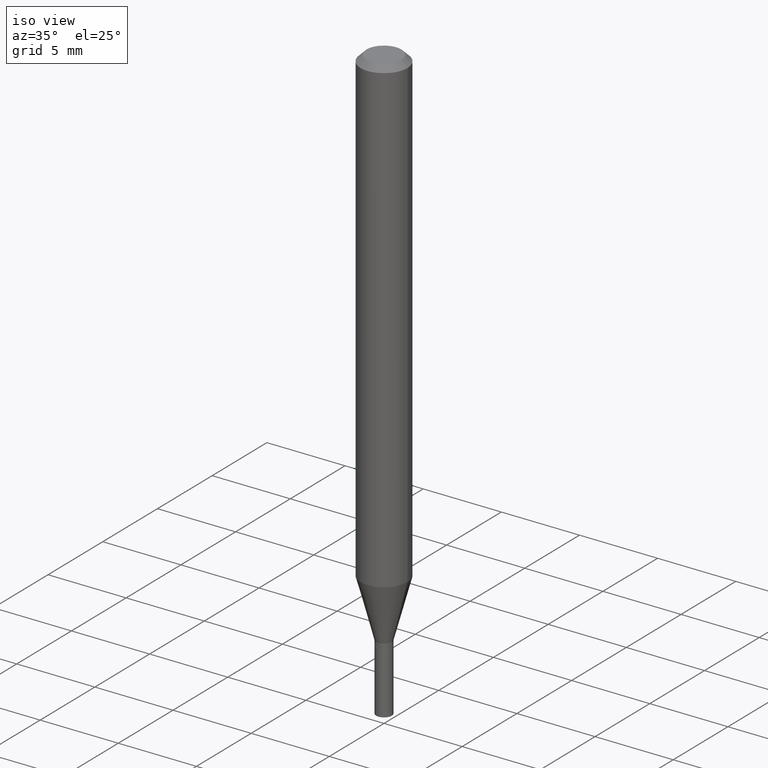
[diagram: clean part render]
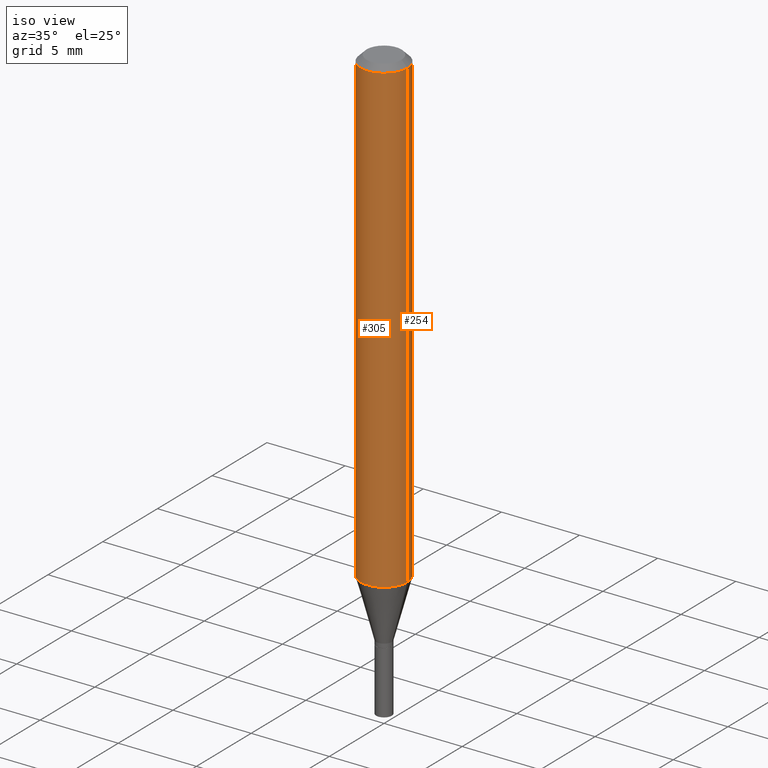
[diagram: same view with one multi-face feature highlighted, each face labeled with its STEP entity id]
A machine part, iso view. The highlighted faces form ONE feature: a constant-radius fillet chain: 2 tangent blend faces with common blend radius 1.4999 mm. The faces share edges in the B-rep.
Their STEP definitions:
[1] entity #305 (Cylinder):
#9 = DIRECTION ( 'NONE',  ( 1.000000000000000000, -6.982962677686270655E-15, 0.000000000000000000 ) ) ;
#15 = ORIENTED_EDGE ( 'NONE', *, *, #342, .F. ) ;
#26 = CARTESIAN_POINT ( 'NONE',  ( 0.05905000000000001914, -4.550251410184451334E-15, -1.185143800722164409 ) ) ;
#67 = DIRECTION ( 'NONE',  ( -2.445468806185136597E-29, 3.491481338843145583E-15, 1.000000000000000000 ) ) ;
#76 = CARTESIAN_POINT ( 'NONE',  ( 2.898232195509746702E-29, -4.137907464067076414E-15, -1.185143800722164409 ) ) ;
#78 = VERTEX_POINT ( 'NONE', #26 ) ;
#95 = AXIS2_PLACEMENT_3D ( 'NONE', #76, #181, #9 ) ;
#97 = DIRECTION ( 'NONE',  ( 1.000000000000000000, -6.982962677686266711E-15, 4.876176775795935793E-29 ) ) ;
#110 = CARTESIAN_POINT ( 'NONE',  ( 3.668203209277705088E-31, -5.237222008264718399E-17, -0.01499999999999999944 ) ) ;
#129 = CARTESIAN_POINT ( 'NONE',  ( 0.000000000000000000, 0.000000000000000000, 0.000000000000000000 ) ) ;
#136 = DIRECTION ( 'NONE',  ( -2.445468806185136597E-29, 3.491481338843145583E-15, 1.000000000000000000 ) ) ;
#155 = CARTESIAN_POINT ( 'NONE',  ( -0.05905000000000001914, 4.195754854663392958E-16, -2.904631170795522943E-30 ) ) ;
#168 = CYLINDRICAL_SURFACE ( 'NONE', #383, 0.05905000000000001914 ) ;
#171 = AXIS2_PLACEMENT_3D ( 'NONE', #110, #67, #319 ) ;
#181 = DIRECTION ( 'NONE',  ( -2.445468806185136597E-29, 3.491481338843145583E-15, 1.000000000000000000 ) ) ;
#186 = FACE_OUTER_BOUND ( 'NONE', #363, .T. ) ;
#195 = VERTEX_POINT ( 'NONE', #378 ) ;
#208 = ORIENTED_EDGE ( 'NONE', *, *, #209, .F. ) ;
#209 = EDGE_CURVE ( 'NONE', #369, #195, #410, .T. ) ;
#214 = EDGE_CURVE ( 'NONE', #369, #78, #341, .T. ) ;
#222 = CARTESIAN_POINT ( 'NONE',  ( 0.05905000000000001914, -4.123439461173741806E-16, 2.879382386107500921E-30 ) ) ;
#230 = EDGE_CURVE ( 'NONE', #78, #326, #333, .T. ) ;
#268 = ORIENTED_EDGE ( 'NONE', *, *, #214, .T. ) ;
#276 = CARTESIAN_POINT ( 'NONE',  ( -0.05905000000000001914, -3.718331978600737710E-15, -1.185143800722164409 ) ) ;
#290 = DIRECTION ( 'NONE',  ( -2.445468806185136877E-29, 3.491481338843145188E-15, 1.000000000000000000 ) ) ;
#305 = ADVANCED_FACE ( 'NONE', ( #186 ), #168, .T. ) ;
#319 = DIRECTION ( 'NONE',  ( 1.000000000000000000, -6.982962677686266711E-15, 0.000000000000000000 ) ) ;
#326 = VERTEX_POINT ( 'NONE', #377 ) ;
#329 = CIRCLE ( 'NONE', #171, 0.05905000000000001914 ) ;
#333 = LINE ( 'NONE', #222, #399 ) ;
#339 = DIRECTION ( 'NONE',  ( -2.445468806185136877E-29, 3.491481338843145188E-15, 1.000000000000000000 ) ) ;
#341 = CIRCLE ( 'NONE', #95, 0.05905000000000001914 ) ;
#342 = EDGE_CURVE ( 'NONE', #195, #326, #329, .T. ) ;
#363 = EDGE_LOOP ( 'NONE', ( #208, #268, #401, #15 ) ) ;
#369 = VERTEX_POINT ( 'NONE', #276 ) ;
#377 = CARTESIAN_POINT ( 'NONE',  ( 0.05905000000000001914, -4.647161662000214077E-16, -0.01499999999999999944 ) ) ;
#378 = CARTESIAN_POINT ( 'NONE',  ( -0.05905000000000001914, -1.675564356608522648E-15, -0.01499999999999999944 ) ) ;
#383 = AXIS2_PLACEMENT_3D ( 'NONE', #129, #136, #97 ) ;
#399 = VECTOR ( 'NONE', #339, 39.37007874015748143 ) ;
#401 = ORIENTED_EDGE ( 'NONE', *, *, #230, .T. ) ;
#405 = VECTOR ( 'NONE', #290, 39.37007874015748143 ) ;
#410 = LINE ( 'NONE', #155, #405 ) ;
[2] entity #254 (Cylinder):
#14 = ORIENTED_EDGE ( 'NONE', *, *, #230, .F. ) ;
#19 = CIRCLE ( 'NONE', #233, 0.05905000000000001914 ) ;
#26 = CARTESIAN_POINT ( 'NONE',  ( 0.05905000000000001914, -4.550251410184451334E-15, -1.185143800722164409 ) ) ;
#37 = CARTESIAN_POINT ( 'NONE',  ( 0.000000000000000000, 0.000000000000000000, 0.000000000000000000 ) ) ;
#39 = DIRECTION ( 'NONE',  ( -2.445468806185136597E-29, 3.491481338843145583E-15, 1.000000000000000000 ) ) ;
#51 = CIRCLE ( 'NONE', #115, 0.05905000000000001914 ) ;
#78 = VERTEX_POINT ( 'NONE', #26 ) ;
#112 = EDGE_CURVE ( 'NONE', #78, #369, #19, .T. ) ;
#115 = AXIS2_PLACEMENT_3D ( 'NONE', #357, #314, #253 ) ;
#155 = CARTESIAN_POINT ( 'NONE',  ( -0.05905000000000001914, 4.195754854663392958E-16, -2.904631170795522943E-30 ) ) ;
#195 = VERTEX_POINT ( 'NONE', #378 ) ;
#209 = EDGE_CURVE ( 'NONE', #369, #195, #410, .T. ) ;
#222 = CARTESIAN_POINT ( 'NONE',  ( 0.05905000000000001914, -4.123439461173741806E-16, 2.879382386107500921E-30 ) ) ;
#230 = EDGE_CURVE ( 'NONE', #78, #326, #333, .T. ) ;
#233 = AXIS2_PLACEMENT_3D ( 'NONE', #324, #284, #241 ) ;
#235 = EDGE_LOOP ( 'NONE', ( #350, #434, #420, #14 ) ) ;
#241 = DIRECTION ( 'NONE',  ( 1.000000000000000000, -6.982962677686270655E-15, 0.000000000000000000 ) ) ;
#253 = DIRECTION ( 'NONE',  ( 1.000000000000000000, -6.982962677686266711E-15, 0.000000000000000000 ) ) ;
#254 = ADVANCED_FACE ( 'NONE', ( #293 ), #291, .T. ) ;
#260 = AXIS2_PLACEMENT_3D ( 'NONE', #37, #39, #421 ) ;
#276 = CARTESIAN_POINT ( 'NONE',  ( -0.05905000000000001914, -3.718331978600737710E-15, -1.185143800722164409 ) ) ;
#284 = DIRECTION ( 'NONE',  ( -2.445468806185136597E-29, 3.491481338843145583E-15, 1.000000000000000000 ) ) ;
#290 = DIRECTION ( 'NONE',  ( -2.445468806185136877E-29, 3.491481338843145188E-15, 1.000000000000000000 ) ) ;
#291 = CYLINDRICAL_SURFACE ( 'NONE', #260, 0.05905000000000001914 ) ;
#293 = FACE_OUTER_BOUND ( 'NONE', #235, .T. ) ;
#303 = EDGE_CURVE ( 'NONE', #326, #195, #51, .T. ) ;
#314 = DIRECTION ( 'NONE',  ( -2.445468806185136597E-29, 3.491481338843145583E-15, 1.000000000000000000 ) ) ;
#324 = CARTESIAN_POINT ( 'NONE',  ( 2.898232195509746702E-29, -4.137907464067076414E-15, -1.185143800722164409 ) ) ;
#326 = VERTEX_POINT ( 'NONE', #377 ) ;
#333 = LINE ( 'NONE', #222, #399 ) ;
#339 = DIRECTION ( 'NONE',  ( -2.445468806185136877E-29, 3.491481338843145188E-15, 1.000000000000000000 ) ) ;
#350 = ORIENTED_EDGE ( 'NONE', *, *, #112, .T. ) ;
#357 = CARTESIAN_POINT ( 'NONE',  ( 3.668203209277705088E-31, -5.237222008264718399E-17, -0.01499999999999999944 ) ) ;
#369 = VERTEX_POINT ( 'NONE', #276 ) ;
#377 = CARTESIAN_POINT ( 'NONE',  ( 0.05905000000000001914, -4.647161662000214077E-16, -0.01499999999999999944 ) ) ;
#378 = CARTESIAN_POINT ( 'NONE',  ( -0.05905000000000001914, -1.675564356608522648E-15, -0.01499999999999999944 ) ) ;
#399 = VECTOR ( 'NONE', #339, 39.37007874015748143 ) ;
#405 = VECTOR ( 'NONE', #290, 39.37007874015748143 ) ;
#410 = LINE ( 'NONE', #155, #405 ) ;
#420 = ORIENTED_EDGE ( 'NONE', *, *, #303, .F. ) ;
#421 = DIRECTION ( 'NONE',  ( 1.000000000000000000, -6.982962677686266711E-15, 4.876176775795935793E-29 ) ) ;
#434 = ORIENTED_EDGE ( 'NONE', *, *, #209, .T. ) ;